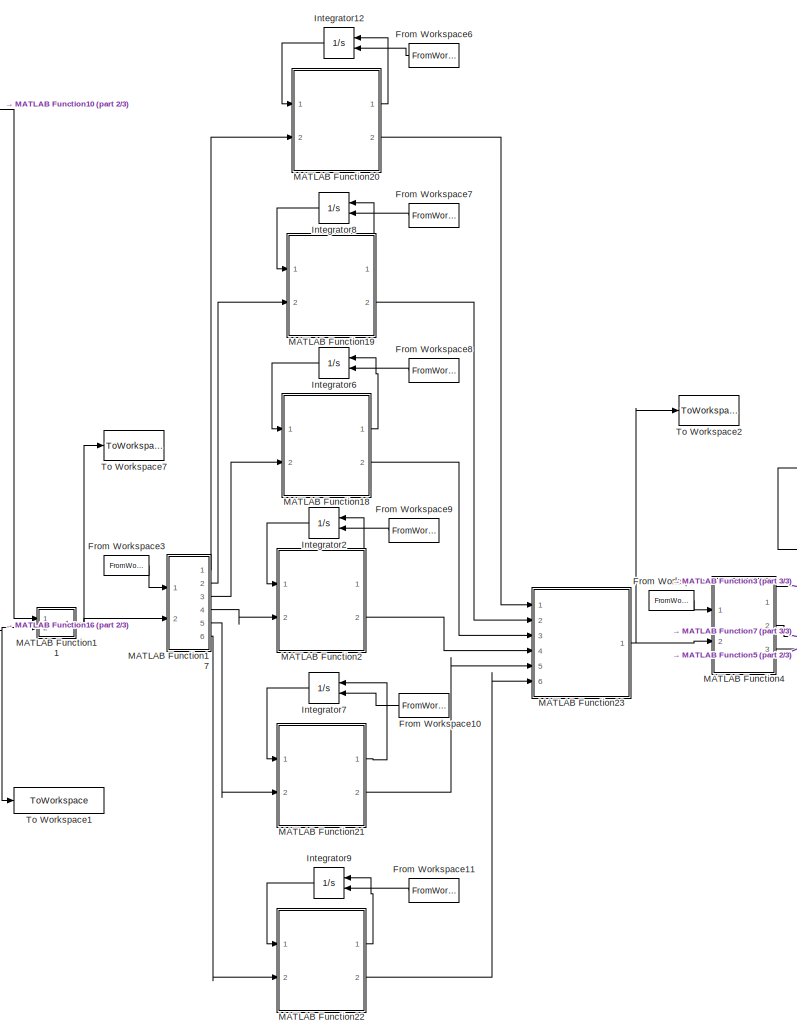
[diagram: root canvas - part 1/3, center side, full height]
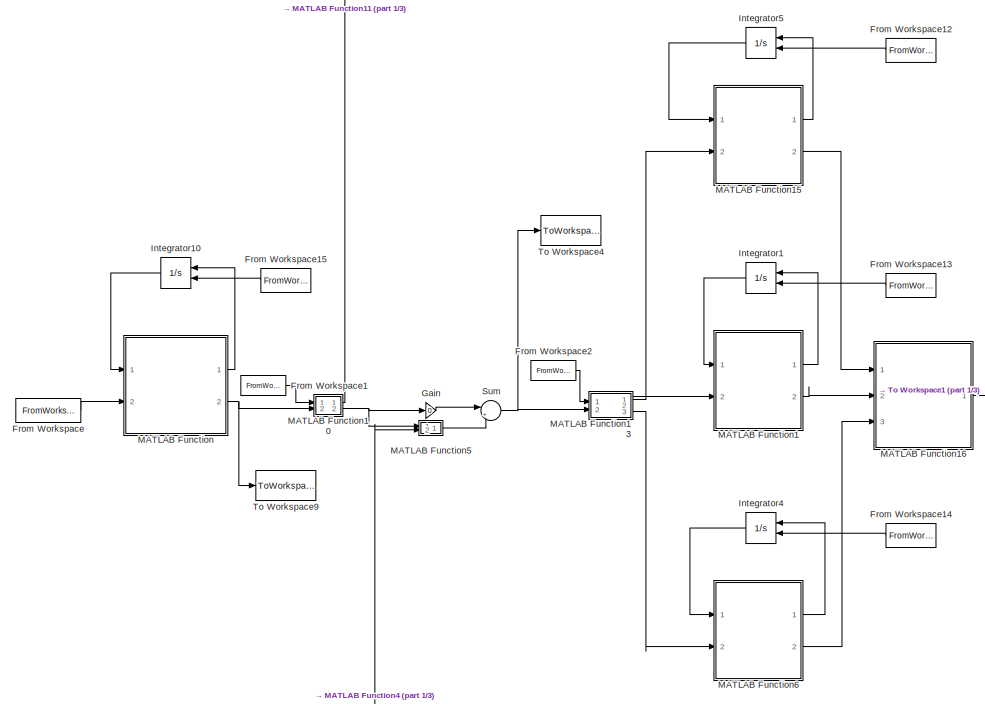
[diagram: root canvas - part 2/3, middle left region]
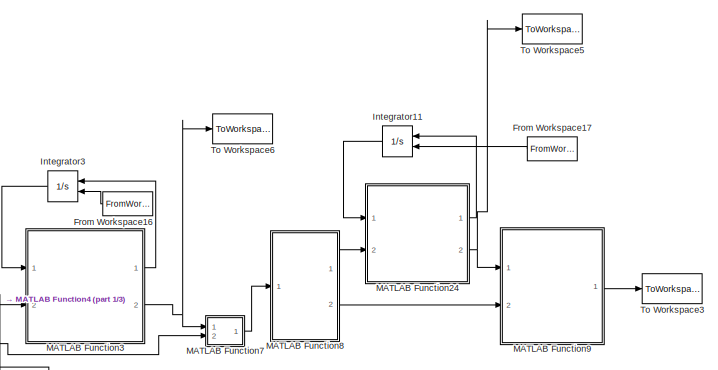
[diagram: root canvas - part 3/3, middle right region]
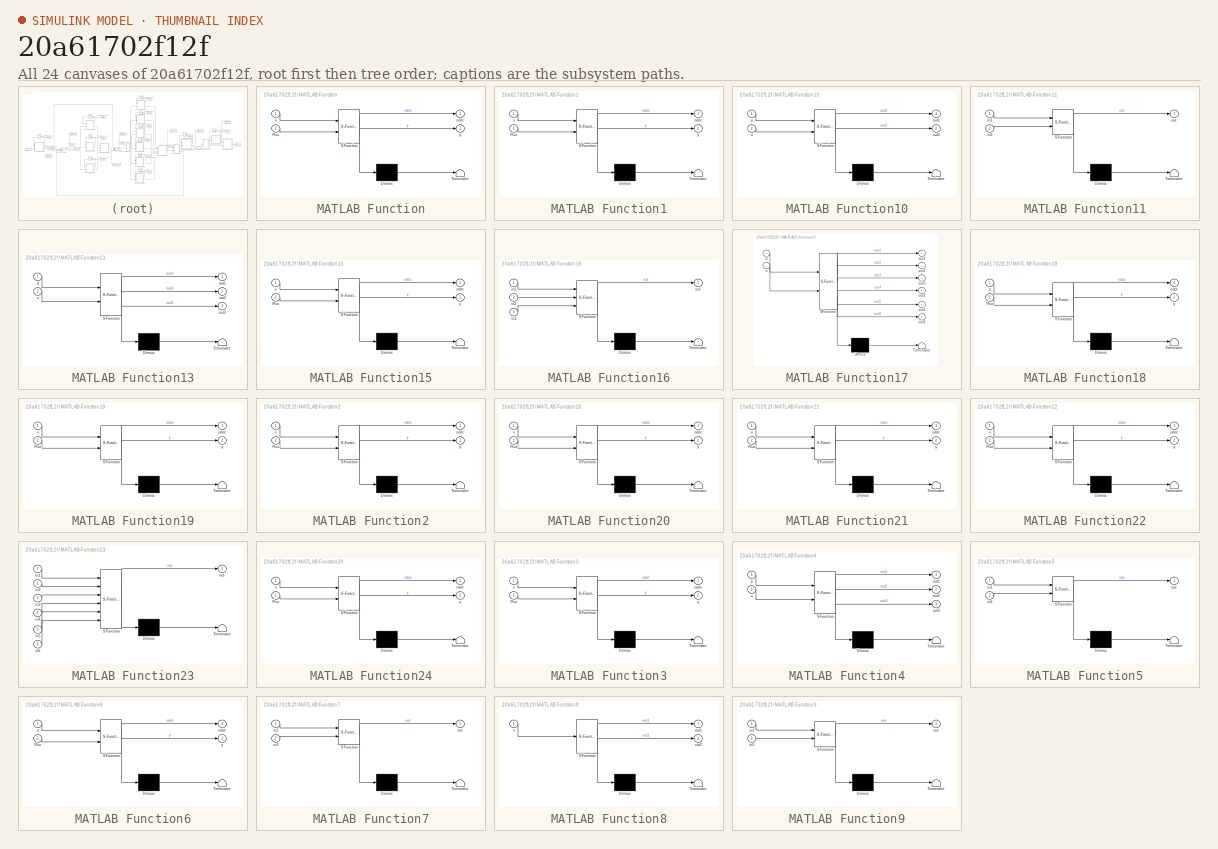
[diagram: thumbnail index - all 24 canvases of the model, root first then tree order]
MODEL slx_20a61702f12f
KIND model
CONFIG AbsTol = auto
CONFIG EnableMultiTasking = off
CONFIG FixedStep = auto
CONFIG MaxStep = auto
CONFIG MinStep = auto
CONFIG RelTol = 1e-2
CONFIG SampleTimeConstraint = Unconstrained
CONFIG Solver = VariableStepAuto
CONFIG SolverName = VariableStepAuto
CONFIG StartTime = 0
CONFIG StopTime = 30
BLOCK [FromWorkspace] From Workspace
  OutDataTypeStr = double
  SampleTime = 0
  VariableName = Flux_in
  ZeroCross = on
BLOCK [FromWorkspace] From Workspace1
  OutDataTypeStr = double
  SampleTime = 0
  VariableName = bypass_pre
  ZeroCross = on
BLOCK [FromWorkspace] From Workspace10
  OutDataTypeStr = double
  SampleTime = 0
  VariableName = initial_nitri
  ZeroCross = on
BLOCK [FromWorkspace] From Workspace11
  OutDataTypeStr = double
  SampleTime = 0
  VariableName = initial_nitri
  ZeroCross = on
BLOCK [FromWorkspace] From Workspace12
  OutDataTypeStr = double
  SampleTime = 0
  VariableName = initial_pre
  ZeroCross = on
BLOCK [FromWorkspace] From Workspace13
  OutDataTypeStr = double
  SampleTime = 0
  VariableName = initial_pre
  ZeroCross = on
BLOCK [FromWorkspace] From Workspace14
  OutDataTypeStr = double
  SampleTime = 0
  VariableName = initial_pre
  ZeroCross = on
BLOCK [FromWorkspace] From Workspace15
  OutDataTypeStr = double
  SampleTime = 0
  VariableName = initial_set_1
  ZeroCross = on
BLOCK [FromWorkspace] From Workspace16
  OutDataTypeStr = double
  SampleTime = 0
  VariableName = initial_post
  ZeroCross = on
BLOCK [FromWorkspace] From Workspace17
  OutDataTypeStr = double
  SampleTime = 0
  VariableName = initial_set_2
  ZeroCross = on
BLOCK [FromWorkspace] From Workspace2
  OutDataTypeStr = double
  SampleTime = 0
  VariableName = repartition_pre
  ZeroCross = on
BLOCK [FromWorkspace] From Workspace3
  OutDataTypeStr = double
  SampleTime = 0
  VariableName = repartition_nitri
  ZeroCross = on
BLOCK [FromWorkspace] From Workspace4
  OutDataTypeStr = double
  SampleTime = 0
  VariableName = recirculation
  ZeroCross = on
BLOCK [FromWorkspace] From Workspace6
  OutDataTypeStr = double
  SampleTime = 0
  VariableName = initial_nitri
  ZeroCross = on
BLOCK [FromWorkspace] From Workspace7
  OutDataTypeStr = double
  SampleTime = 0
  VariableName = initial_nitri
  ZeroCross = on
BLOCK [FromWorkspace] From Workspace8
  OutDataTypeStr = double
  SampleTime = 0
  VariableName = initial_nitri
  ZeroCross = on
BLOCK [FromWorkspace] From Workspace9
  OutDataTypeStr = double
  SampleTime = 0
  VariableName = initial_nitri
  ZeroCross = on
BLOCK [Gain] Gain
  Gain = 0
  OutDataTypeStr = Inherit: Inherit via internal rule
  ParamDataTypeStr = Inherit: Inherit via internal rule
  SaturateOnIntegerOverflow = off
BLOCK [Integrator] Integrator1
  InitialCondition = [122.4 8 25.5 0.018 0.01 43.08 7]
  InitialConditionSource = external
  Ports = [2, 1]
BLOCK [Integrator] Integrator10
  InitialCondition = [122.4 8 25.5 0.018 0.01 43.08 7]
  InitialConditionSource = external
  Ports = [2, 1]
BLOCK [Integrator] Integrator11
  InitialCondition = [122.4 8 25.5 0.018 0.01 43.08 7]
  InitialConditionSource = external
  Ports = [2, 1]
BLOCK [Integrator] Integrator12
  InitialCondition = [122.4 8 25.5 0.018 0.01 43.08 7]
  InitialConditionSource = external
  Ports = [2, 1]
BLOCK [Integrator] Integrator2
  InitialCondition = [122.4 8 25.5 0.018 0.01 43.08 7]
  InitialConditionSource = external
  Ports = [2, 1]
BLOCK [Integrator] Integrator3
  InitialCondition = [122.4 8 25.5 0.018 0.01 43.08 7]
  InitialConditionSource = external
  Ports = [2, 1]
BLOCK [Integrator] Integrator4
  InitialCondition = [122.4 8 25.5 0.018 0.01 43.08 7]
  InitialConditionSource = external
  Ports = [2, 1]
BLOCK [Integrator] Integrator5
  InitialCondition = [122.4 8 25.5 0.018 0.01 43.08 7]
  InitialConditionSource = external
  Ports = [2, 1]
BLOCK [Integrator] Integrator6
  InitialCondition = [122.4 8 25.5 0.018 0.01 43.08 7]
  InitialConditionSource = external
  Ports = [2, 1]
BLOCK [Integrator] Integrator7
  InitialCondition = [122.4 8 25.5 0.018 0.01 43.08 7]
  InitialConditionSource = external
  Ports = [2, 1]
BLOCK [Integrator] Integrator8
  InitialCondition = [122.4 8 25.5 0.018 0.01 43.08 7]
  InitialConditionSource = external
  Ports = [2, 1]
BLOCK [Integrator] Integrator9
  InitialCondition = [122.4 8 25.5 0.018 0.01 43.08 7]
  InitialConditionSource = external
  Ports = [2, 1]
BLOCK [SubSystem] MATLAB Function
  ErrorFcn = Stateflow.Translate.translate
  PermitHierarchicalResolution = ExplicitOnly
  Ports = [2, 2]
  RequestExecContextInheritance = off
  SFBlockType = MATLAB Function
  TreatAsAtomicUnit = on
BLOCK [Demux] MATLAB Function/ Demux 
  Outputs = 1
  Ports = [1, 1]
BLOCK [S-Function] MATLAB Function/ SFunction 
  EnableBusSupport = on
  FunctionName = sf_sfun
  PortCounts = [2 3]
  Ports = [2, 3]
  SFcnIsStateOwnerBlock = off
  SFunctionDeploymentMode = off
  Tag = Stateflow S-Function sav2022_opti 2
BLOCK [Terminator] MATLAB Function/ Terminator 
BLOCK [Inport] MATLAB Function/Flux
  IconDisplay = Port number
  Port = 2
BLOCK [Inport] MATLAB Function/n
  IconDisplay = Port number
BLOCK [Outport] MATLAB Function/ndot
  IconDisplay = Port number
BLOCK [Outport] MATLAB Function/y
  IconDisplay = Port number
  Port = 2
BLOCK [SubSystem] MATLAB Function1
  ErrorFcn = Stateflow.Translate.translate
  PermitHierarchicalResolution = ExplicitOnly
  Ports = [2, 2]
  RequestExecContextInheritance = off
  SFBlockType = MATLAB Function
  TreatAsAtomicUnit = on
BLOCK [Demux] MATLAB Function1/ Demux 
  Outputs = 1
  Ports = [1, 1]
BLOCK [S-Function] MATLAB Function1/ SFunction 
  EnableBusSupport = on
  FunctionName = sf_sfun
  PortCounts = [2 3]
  Ports = [2, 3]
  SFcnIsStateOwnerBlock = off
  SFunctionDeploymentMode = off
  Tag = Stateflow S-Function sav2022_opti 1
BLOCK [Terminator] MATLAB Function1/ Terminator 
BLOCK [Inport] MATLAB Function1/Flux
  IconDisplay = Port number
  Port = 2
BLOCK [Inport] MATLAB Function1/n
  IconDisplay = Port number
BLOCK [Outport] MATLAB Function1/ndot
  IconDisplay = Port number
BLOCK [Outport] MATLAB Function1/y
  IconDisplay = Port number
  Port = 2
BLOCK [SubSystem] MATLAB Function10
  ErrorFcn = Stateflow.Translate.translate
  PermitHierarchicalResolution = ExplicitOnly
  Ports = [2, 2]
  RequestExecContextInheritance = off
  SFBlockType = MATLAB Function
  TreatAsAtomicUnit = on
BLOCK [Demux] MATLAB Function10/ Demux 
  Outputs = 1
  Ports = [1, 1]
BLOCK [S-Function] MATLAB Function10/ SFunction 
  EnableBusSupport = on
  FunctionName = sf_sfun
  PortCounts = [2 3]
  Ports = [2, 3]
  SFcnIsStateOwnerBlock = off
  SFunctionDeploymentMode = off
  Tag = Stateflow S-Function sav2022_opti 11
BLOCK [Terminator] MATLAB Function10/ Terminator 
BLOCK [Outport] MATLAB Function10/out1
  IconDisplay = Port number
BLOCK [Outport] MATLAB Function10/out2
  IconDisplay = Port number
  Port = 2
BLOCK [Inport] MATLAB Function10/p
  IconDisplay = Port number
BLOCK [Inport] MATLAB Function10/u
  IconDisplay = Port number
  Port = 2
BLOCK [SubSystem] MATLAB Function11
  ErrorFcn = Stateflow.Translate.translate
  PermitHierarchicalResolution = ExplicitOnly
  Ports = [2, 1]
  RequestExecContextInheritance = off
  SFBlockType = MATLAB Function
  TreatAsAtomicUnit = on
BLOCK [Demux] MATLAB Function11/ Demux 
  Outputs = 1
  Ports = [1, 1]
BLOCK [S-Function] MATLAB Function11/ SFunction 
  EnableBusSupport = on
  FunctionName = sf_sfun
  PortCounts = [2 2]
  Ports = [2, 2]
  SFcnIsStateOwnerBlock = off
  SFunctionDeploymentMode = off
  Tag = Stateflow S-Function sav2022_opti 12
BLOCK [Terminator] MATLAB Function11/ Terminator 
BLOCK [Inport] MATLAB Function11/in1
  IconDisplay = Port number
BLOCK [Inport] MATLAB Function11/in2
  IconDisplay = Port number
  Port = 2
BLOCK [Outport] MATLAB Function11/out
  IconDisplay = Port number
BLOCK [SubSystem] MATLAB Function13
  ErrorFcn = Stateflow.Translate.translate
  PermitHierarchicalResolution = ExplicitOnly
  Ports = [2, 3]
  RequestExecContextInheritance = off
  SFBlockType = MATLAB Function
  TreatAsAtomicUnit = on
BLOCK [Demux] MATLAB Function13/ Demux 
  Outputs = 1
  Ports = [1, 1]
BLOCK [S-Function] MATLAB Function13/ SFunction 
  EnableBusSupport = on
  FunctionName = sf_sfun
  PortCounts = [2 4]
  Ports = [2, 4]
  SFcnIsStateOwnerBlock = off
  SFunctionDeploymentMode = off
  Tag = Stateflow S-Function sav2022_opti 14
BLOCK [Terminator] MATLAB Function13/ Terminator 
BLOCK [Inport] MATLAB Function13/d
  IconDisplay = Port number
BLOCK [Outport] MATLAB Function13/out1
  IconDisplay = Port number
BLOCK [Outport] MATLAB Function13/out2
  IconDisplay = Port number
  Port = 2
BLOCK [Outport] MATLAB Function13/out3
  IconDisplay = Port number
  Port = 3
BLOCK [Inport] MATLAB Function13/u
  IconDisplay = Port number
  Port = 2
BLOCK [SubSystem] MATLAB Function15
  ErrorFcn = Stateflow.Translate.translate
  PermitHierarchicalResolution = ExplicitOnly
  Ports = [2, 2]
  RequestExecContextInheritance = off
  SFBlockType = MATLAB Function
  TreatAsAtomicUnit = on
BLOCK [Demux] MATLAB Function15/ Demux 
  Outputs = 1
  Ports = [1, 1]
BLOCK [S-Function] MATLAB Function15/ SFunction 
  EnableBusSupport = on
  FunctionName = sf_sfun
  PortCounts = [2 3]
  Ports = [2, 3]
  SFcnIsStateOwnerBlock = off
  SFunctionDeploymentMode = off
  Tag = Stateflow S-Function sav2022_opti 16
BLOCK [Terminator] MATLAB Function15/ Terminator 
BLOCK [Inport] MATLAB Function15/Flux
  IconDisplay = Port number
  Port = 2
BLOCK [Inport] MATLAB Function15/n
  IconDisplay = Port number
BLOCK [Outport] MATLAB Function15/ndot
  IconDisplay = Port number
BLOCK [Outport] MATLAB Function15/y
  IconDisplay = Port number
  Port = 2
BLOCK [SubSystem] MATLAB Function16
  ErrorFcn = Stateflow.Translate.translate
  PermitHierarchicalResolution = ExplicitOnly
  Ports = [3, 1]
  RequestExecContextInheritance = off
  SFBlockType = MATLAB Function
  TreatAsAtomicUnit = on
BLOCK [Demux] MATLAB Function16/ Demux 
  Outputs = 1
  Ports = [1, 1]
BLOCK [S-Function] MATLAB Function16/ SFunction 
  EnableBusSupport = on
  FunctionName = sf_sfun
  PortCounts = [3 2]
  Ports = [3, 2]
  SFcnIsStateOwnerBlock = off
  SFunctionDeploymentMode = off
  Tag = Stateflow S-Function sav2022_opti 17
BLOCK [Terminator] MATLAB Function16/ Terminator 
BLOCK [Inport] MATLAB Function16/in1
  IconDisplay = Port number
BLOCK [Inport] MATLAB Function16/in2
  IconDisplay = Port number
  Port = 2
BLOCK [Inport] MATLAB Function16/in3
  IconDisplay = Port number
  Port = 3
BLOCK [Outport] MATLAB Function16/out
  IconDisplay = Port number
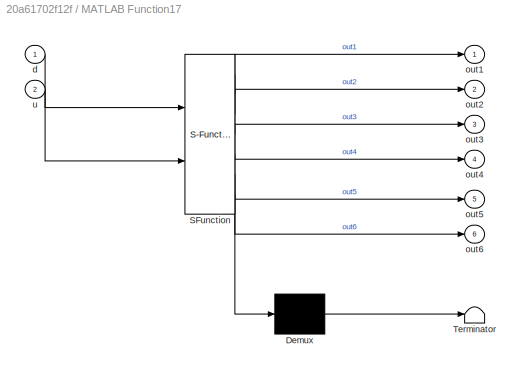
BLOCK [SubSystem] MATLAB Function17
  ErrorFcn = Stateflow.Translate.translate
  PermitHierarchicalResolution = ExplicitOnly
  Ports = [2, 6]
  RequestExecContextInheritance = off
  SFBlockType = MATLAB Function
  TreatAsAtomicUnit = on
BLOCK [Demux] MATLAB Function17/ Demux 
  Outputs = 1
  Ports = [1, 1]
BLOCK [S-Function] MATLAB Function17/ SFunction 
  EnableBusSupport = on
  FunctionName = sf_sfun
  PortCounts = [2 7]
  Ports = [2, 7]
  SFcnIsStateOwnerBlock = off
  SFunctionDeploymentMode = off
  Tag = Stateflow S-Function sav2022_opti 18
BLOCK [Terminator] MATLAB Function17/ Terminator 
BLOCK [Inport] MATLAB Function17/d
  IconDisplay = Port number
BLOCK [Outport] MATLAB Function17/out1
  IconDisplay = Port number
BLOCK [Outport] MATLAB Function17/out2
  IconDisplay = Port number
  Port = 2
BLOCK [Outport] MATLAB Function17/out3
  IconDisplay = Port number
  Port = 3
BLOCK [Outport] MATLAB Function17/out4
  IconDisplay = Port number
  Port = 4
BLOCK [Outport] MATLAB Function17/out5
  IconDisplay = Port number
  Port = 5
BLOCK [Outport] MATLAB Function17/out6
  IconDisplay = Port number
  Port = 6
BLOCK [Inport] MATLAB Function17/u
  IconDisplay = Port number
  Port = 2
BLOCK [SubSystem] MATLAB Function18
  ErrorFcn = Stateflow.Translate.translate
  PermitHierarchicalResolution = ExplicitOnly
  Ports = [2, 2]
  RequestExecContextInheritance = off
  SFBlockType = MATLAB Function
  TreatAsAtomicUnit = on
BLOCK [Demux] MATLAB Function18/ Demux 
  Outputs = 1
  Ports = [1, 1]
BLOCK [S-Function] MATLAB Function18/ SFunction 
  EnableBusSupport = on
  FunctionName = sf_sfun
  PortCounts = [2 3]
  Ports = [2, 3]
  SFcnIsStateOwnerBlock = off
  SFunctionDeploymentMode = off
  Tag = Stateflow S-Function sav2022_opti 19
BLOCK [Terminator] MATLAB Function18/ Terminator 
BLOCK [Inport] MATLAB Function18/Flux
  IconDisplay = Port number
  Port = 2
BLOCK [Inport] MATLAB Function18/n
  IconDisplay = Port number
BLOCK [Outport] MATLAB Function18/ndot
  IconDisplay = Port number
BLOCK [Outport] MATLAB Function18/y
  IconDisplay = Port number
  Port = 2
BLOCK [SubSystem] MATLAB Function19
  ErrorFcn = Stateflow.Translate.translate
  PermitHierarchicalResolution = ExplicitOnly
  Ports = [2, 2]
  RequestExecContextInheritance = off
  SFBlockType = MATLAB Function
  TreatAsAtomicUnit = on
BLOCK [Demux] MATLAB Function19/ Demux 
  Outputs = 1
  Ports = [1, 1]
BLOCK [S-Function] MATLAB Function19/ SFunction 
  EnableBusSupport = on
  FunctionName = sf_sfun
  PortCounts = [2 3]
  Ports = [2, 3]
  SFcnIsStateOwnerBlock = off
  SFunctionDeploymentMode = off
  Tag = Stateflow S-Function sav2022_opti 20
BLOCK [Terminator] MATLAB Function19/ Terminator 
BLOCK [Inport] MATLAB Function19/Flux
  IconDisplay = Port number
  Port = 2
BLOCK [Inport] MATLAB Function19/n
  IconDisplay = Port number
BLOCK [Outport] MATLAB Function19/ndot
  IconDisplay = Port number
BLOCK [Outport] MATLAB Function19/y
  IconDisplay = Port number
  Port = 2
BLOCK [SubSystem] MATLAB Function2
  ErrorFcn = Stateflow.Translate.translate
  PermitHierarchicalResolution = ExplicitOnly
  Ports = [2, 2]
  RequestExecContextInheritance = off
  SFBlockType = MATLAB Function
  TreatAsAtomicUnit = on
BLOCK [Demux] MATLAB Function2/ Demux 
  Outputs = 1
  Ports = [1, 1]
BLOCK [S-Function] MATLAB Function2/ SFunction 
  EnableBusSupport = on
  FunctionName = sf_sfun
  PortCounts = [2 3]
  Ports = [2, 3]
  SFcnIsStateOwnerBlock = off
  SFunctionDeploymentMode = off
  Tag = Stateflow S-Function sav2022_opti 3
BLOCK [Terminator] MATLAB Function2/ Terminator 
BLOCK [Inport] MATLAB Function2/Flux
  IconDisplay = Port number
  Port = 2
BLOCK [Inport] MATLAB Function2/n
  IconDisplay = Port number
BLOCK [Outport] MATLAB Function2/ndot
  IconDisplay = Port number
BLOCK [Outport] MATLAB Function2/y
  IconDisplay = Port number
  Port = 2
BLOCK [SubSystem] MATLAB Function20
  ErrorFcn = Stateflow.Translate.translate
  PermitHierarchicalResolution = ExplicitOnly
  Ports = [2, 2]
  RequestExecContextInheritance = off
  SFBlockType = MATLAB Function
  TreatAsAtomicUnit = on
BLOCK [Demux] MATLAB Function20/ Demux 
  Outputs = 1
  Ports = [1, 1]
BLOCK [S-Function] MATLAB Function20/ SFunction 
  EnableBusSupport = on
  FunctionName = sf_sfun
  PortCounts = [2 3]
  Ports = [2, 3]
  SFcnIsStateOwnerBlock = off
  SFunctionDeploymentMode = off
  Tag = Stateflow S-Function sav2022_opti 21
BLOCK [Terminator] MATLAB Function20/ Terminator 
BLOCK [Inport] MATLAB Function20/Flux
  IconDisplay = Port number
  Port = 2
BLOCK [Inport] MATLAB Function20/n
  IconDisplay = Port number
BLOCK [Outport] MATLAB Function20/ndot
  IconDisplay = Port number
BLOCK [Outport] MATLAB Function20/y
  IconDisplay = Port number
  Port = 2
BLOCK [SubSystem] MATLAB Function21
  ErrorFcn = Stateflow.Translate.translate
  PermitHierarchicalResolution = ExplicitOnly
  Ports = [2, 2]
  RequestExecContextInheritance = off
  SFBlockType = MATLAB Function
  TreatAsAtomicUnit = on
BLOCK [Demux] MATLAB Function21/ Demux 
  Outputs = 1
  Ports = [1, 1]
BLOCK [S-Function] MATLAB Function21/ SFunction 
  EnableBusSupport = on
  FunctionName = sf_sfun
  PortCounts = [2 3]
  Ports = [2, 3]
  SFcnIsStateOwnerBlock = off
  SFunctionDeploymentMode = off
  Tag = Stateflow S-Function sav2022_opti 22
BLOCK [Terminator] MATLAB Function21/ Terminator 
BLOCK [Inport] MATLAB Function21/Flux
  IconDisplay = Port number
  Port = 2
BLOCK [Inport] MATLAB Function21/n
  IconDisplay = Port number
BLOCK [Outport] MATLAB Function21/ndot
  IconDisplay = Port number
BLOCK [Outport] MATLAB Function21/y
  IconDisplay = Port number
  Port = 2
BLOCK [SubSystem] MATLAB Function22
  ErrorFcn = Stateflow.Translate.translate
  PermitHierarchicalResolution = ExplicitOnly
  Ports = [2, 2]
  RequestExecContextInheritance = off
  SFBlockType = MATLAB Function
  TreatAsAtomicUnit = on
BLOCK [Demux] MATLAB Function22/ Demux 
  Outputs = 1
  Ports = [1, 1]
BLOCK [S-Function] MATLAB Function22/ SFunction 
  EnableBusSupport = on
  FunctionName = sf_sfun
  PortCounts = [2 3]
  Ports = [2, 3]
  SFcnIsStateOwnerBlock = off
  SFunctionDeploymentMode = off
  Tag = Stateflow S-Function sav2022_opti 23
BLOCK [Terminator] MATLAB Function22/ Terminator 
BLOCK [Inport] MATLAB Function22/Flux
  IconDisplay = Port number
  Port = 2
BLOCK [Inport] MATLAB Function22/n
  IconDisplay = Port number
BLOCK [Outport] MATLAB Function22/ndot
  IconDisplay = Port number
BLOCK [Outport] MATLAB Function22/y
  IconDisplay = Port number
  Port = 2
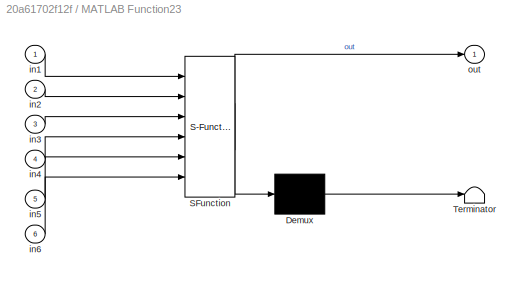
BLOCK [SubSystem] MATLAB Function23
  ErrorFcn = Stateflow.Translate.translate
  PermitHierarchicalResolution = ExplicitOnly
  Ports = [6, 1]
  RequestExecContextInheritance = off
  SFBlockType = MATLAB Function
  TreatAsAtomicUnit = on
BLOCK [Demux] MATLAB Function23/ Demux 
  Outputs = 1
  Ports = [1, 1]
BLOCK [S-Function] MATLAB Function23/ SFunction 
  EnableBusSupport = on
  FunctionName = sf_sfun
  PortCounts = [6 2]
  Ports = [6, 2]
  SFcnIsStateOwnerBlock = off
  SFunctionDeploymentMode = off
  Tag = Stateflow S-Function sav2022_opti 24
BLOCK [Terminator] MATLAB Function23/ Terminator 
BLOCK [Inport] MATLAB Function23/in1
  IconDisplay = Port number
BLOCK [Inport] MATLAB Function23/in2
  IconDisplay = Port number
  Port = 2
BLOCK [Inport] MATLAB Function23/in3
  IconDisplay = Port number
  Port = 3
BLOCK [Inport] MATLAB Function23/in4
  IconDisplay = Port number
  Port = 4
BLOCK [Inport] MATLAB Function23/in5
  IconDisplay = Port number
  Port = 5
BLOCK [Inport] MATLAB Function23/in6
  IconDisplay = Port number
  Port = 6
BLOCK [Outport] MATLAB Function23/out
  IconDisplay = Port number
BLOCK [SubSystem] MATLAB Function24
  ErrorFcn = Stateflow.Translate.translate
  PermitHierarchicalResolution = ExplicitOnly
  Ports = [2, 2]
  RequestExecContextInheritance = off
  SFBlockType = MATLAB Function
  TreatAsAtomicUnit = on
BLOCK [Demux] MATLAB Function24/ Demux 
  Outputs = 1
  Ports = [1, 1]
BLOCK [S-Function] MATLAB Function24/ SFunction 
  EnableBusSupport = on
  FunctionName = sf_sfun
  PortCounts = [2 3]
  Ports = [2, 3]
  SFcnIsStateOwnerBlock = off
  SFunctionDeploymentMode = off
  Tag = Stateflow S-Function sav2022_opti 25
BLOCK [Terminator] MATLAB Function24/ Terminator 
BLOCK [Inport] MATLAB Function24/Flux
  IconDisplay = Port number
  Port = 2
BLOCK [Inport] MATLAB Function24/n
  IconDisplay = Port number
BLOCK [Outport] MATLAB Function24/ndot
  IconDisplay = Port number
BLOCK [Outport] MATLAB Function24/y
  IconDisplay = Port number
  Port = 2
BLOCK [SubSystem] MATLAB Function3
  ErrorFcn = Stateflow.Translate.translate
  PermitHierarchicalResolution = ExplicitOnly
  Ports = [2, 2]
  RequestExecContextInheritance = off
  SFBlockType = MATLAB Function
  TreatAsAtomicUnit = on
BLOCK [Demux] MATLAB Function3/ Demux 
  Outputs = 1
  Ports = [1, 1]
BLOCK [S-Function] MATLAB Function3/ SFunction 
  EnableBusSupport = on
  FunctionName = sf_sfun
  PortCounts = [2 3]
  Ports = [2, 3]
  SFcnIsStateOwnerBlock = off
  SFunctionDeploymentMode = off
  Tag = Stateflow S-Function sav2022_opti 4
BLOCK [Terminator] MATLAB Function3/ Terminator 
BLOCK [Inport] MATLAB Function3/Flux
  IconDisplay = Port number
  Port = 2
BLOCK [Inport] MATLAB Function3/n
  IconDisplay = Port number
BLOCK [Outport] MATLAB Function3/ndot
  IconDisplay = Port number
BLOCK [Outport] MATLAB Function3/y
  IconDisplay = Port number
  Port = 2
BLOCK [SubSystem] MATLAB Function4
  ErrorFcn = Stateflow.Translate.translate
  PermitHierarchicalResolution = ExplicitOnly
  Ports = [2, 3]
  RequestExecContextInheritance = off
  SFBlockType = MATLAB Function
  TreatAsAtomicUnit = on
BLOCK [Demux] MATLAB Function4/ Demux 
  Outputs = 1
  Ports = [1, 1]
BLOCK [S-Function] MATLAB Function4/ SFunction 
  EnableBusSupport = on
  FunctionName = sf_sfun
  PortCounts = [2 4]
  Ports = [2, 4]
  SFcnIsStateOwnerBlock = off
  SFunctionDeploymentMode = off
  Tag = Stateflow S-Function sav2022_opti 5
BLOCK [Terminator] MATLAB Function4/ Terminator 
BLOCK [Outport] MATLAB Function4/out1
  IconDisplay = Port number
BLOCK [Outport] MATLAB Function4/out2
  IconDisplay = Port number
  Port = 2
BLOCK [Outport] MATLAB Function4/out3
  IconDisplay = Port number
  Port = 3
BLOCK [Inport] MATLAB Function4/p
  IconDisplay = Port number
BLOCK [Inport] MATLAB Function4/u
  IconDisplay = Port number
  Port = 2
BLOCK [SubSystem] MATLAB Function5
  ErrorFcn = Stateflow.Translate.translate
  PermitHierarchicalResolution = ExplicitOnly
  Ports = [2, 1]
  RequestExecContextInheritance = off
  SFBlockType = MATLAB Function
  TreatAsAtomicUnit = on
BLOCK [Demux] MATLAB Function5/ Demux 
  Outputs = 1
  Ports = [1, 1]
BLOCK [S-Function] MATLAB Function5/ SFunction 
  EnableBusSupport = on
  FunctionName = sf_sfun
  PortCounts = [2 2]
  Ports = [2, 2]
  SFcnIsStateOwnerBlock = off
  SFunctionDeploymentMode = off
  Tag = Stateflow S-Function sav2022_opti 6
BLOCK [Terminator] MATLAB Function5/ Terminator 
BLOCK [Inport] MATLAB Function5/in1
  IconDisplay = Port number
BLOCK [Inport] MATLAB Function5/in2
  IconDisplay = Port number
  Port = 2
BLOCK [Outport] MATLAB Function5/out
  IconDisplay = Port number
BLOCK [SubSystem] MATLAB Function6
  ErrorFcn = Stateflow.Translate.translate
  PermitHierarchicalResolution = ExplicitOnly
  Ports = [2, 2]
  RequestExecContextInheritance = off
  SFBlockType = MATLAB Function
  TreatAsAtomicUnit = on
BLOCK [Demux] MATLAB Function6/ Demux 
  Outputs = 1
  Ports = [1, 1]
BLOCK [S-Function] MATLAB Function6/ SFunction 
  EnableBusSupport = on
  FunctionName = sf_sfun
  PortCounts = [2 3]
  Ports = [2, 3]
  SFcnIsStateOwnerBlock = off
  SFunctionDeploymentMode = off
  Tag = Stateflow S-Function sav2022_opti 7
BLOCK [Terminator] MATLAB Function6/ Terminator 
BLOCK [Inport] MATLAB Function6/Flux
  IconDisplay = Port number
  Port = 2
BLOCK [Inport] MATLAB Function6/n
  IconDisplay = Port number
BLOCK [Outport] MATLAB Function6/ndot
  IconDisplay = Port number
BLOCK [Outport] MATLAB Function6/y
  IconDisplay = Port number
  Port = 2
BLOCK [SubSystem] MATLAB Function7
  ErrorFcn = Stateflow.Translate.translate
  PermitHierarchicalResolution = ExplicitOnly
  Ports = [2, 1]
  RequestExecContextInheritance = off
  SFBlockType = MATLAB Function
  TreatAsAtomicUnit = on
BLOCK [Demux] MATLAB Function7/ Demux 
  Outputs = 1
  Ports = [1, 1]
BLOCK [S-Function] MATLAB Function7/ SFunction 
  EnableBusSupport = on
  FunctionName = sf_sfun
  PortCounts = [2 2]
  Ports = [2, 2]
  SFcnIsStateOwnerBlock = off
  SFunctionDeploymentMode = off
  Tag = Stateflow S-Function sav2022_opti 8
BLOCK [Terminator] MATLAB Function7/ Terminator 
BLOCK [Inport] MATLAB Function7/in1
  IconDisplay = Port number
BLOCK [Inport] MATLAB Function7/in2
  IconDisplay = Port number
  Port = 2
BLOCK [Outport] MATLAB Function7/out
  IconDisplay = Port number
BLOCK [SubSystem] MATLAB Function8
  ErrorFcn = Stateflow.Translate.translate
  PermitHierarchicalResolution = ExplicitOnly
  Ports = [1, 2]
  RequestExecContextInheritance = off
  SFBlockType = MATLAB Function
  TreatAsAtomicUnit = on
BLOCK [Demux] MATLAB Function8/ Demux 
  Outputs = 1
  Ports = [1, 1]
BLOCK [S-Function] MATLAB Function8/ SFunction 
  EnableBusSupport = on
  FunctionName = sf_sfun
  PortCounts = [1 3]
  Ports = [1, 3]
  SFcnIsStateOwnerBlock = off
  SFunctionDeploymentMode = off
  Tag = Stateflow S-Function sav2022_opti 9
BLOCK [Terminator] MATLAB Function8/ Terminator 
BLOCK [Outport] MATLAB Function8/out1
  IconDisplay = Port number
BLOCK [Outport] MATLAB Function8/out2
  IconDisplay = Port number
  Port = 2
BLOCK [Inport] MATLAB Function8/u
  IconDisplay = Port number
BLOCK [SubSystem] MATLAB Function9
  ErrorFcn = Stateflow.Translate.translate
  PermitHierarchicalResolution = ExplicitOnly
  Ports = [2, 1]
  RequestExecContextInheritance = off
  SFBlockType = MATLAB Function
  TreatAsAtomicUnit = on
BLOCK [Demux] MATLAB Function9/ Demux 
  Outputs = 1
  Ports = [1, 1]
BLOCK [S-Function] MATLAB Function9/ SFunction 
  EnableBusSupport = on
  FunctionName = sf_sfun
  PortCounts = [2 2]
  Ports = [2, 2]
  SFcnIsStateOwnerBlock = off
  SFunctionDeploymentMode = off
  Tag = Stateflow S-Function sav2022_opti 10
BLOCK [Terminator] MATLAB Function9/ Terminator 
BLOCK [Inport] MATLAB Function9/in1
  IconDisplay = Port number
BLOCK [Inport] MATLAB Function9/in2
  IconDisplay = Port number
  Port = 2
BLOCK [Outport] MATLAB Function9/out
  IconDisplay = Port number
BLOCK [Sum] Sum
  IconShape = round
  InputSameDT = off
  Inputs = |++
  OutDataTypeStr = Inherit: Inherit via internal rule
  Ports = [2, 1]
  SaturateOnIntegerOverflow = off
BLOCK [ToWorkspace] To Workspace1
  FixptAsFi = on
  MaxDataPoints = inf
  Ports = [1]
  SampleTime = -1
  Save2DSignal = 3-D array (concatenate along third dimension)
  SaveFormat = Timeseries
  VariableName = output_predenitri
BLOCK [ToWorkspace] To Workspace2
  FixptAsFi = on
  MaxDataPoints = inf
  Ports = [1]
  SampleTime = -1
  Save2DSignal = 3-D array (concatenate along third dimension)
  SaveFormat = Timeseries
  VariableName = output_nitri
BLOCK [ToWorkspace] To Workspace3
  FixptAsFi = on
  MaxDataPoints = inf
  Ports = [1]
  SampleTime = -1
  Save2DSignal = 3-D array (concatenate along third dimension)
  SaveFormat = Timeseries
  VariableName = output_station
BLOCK [ToWorkspace] To Workspace4
  FixptAsFi = on
  MaxDataPoints = inf
  Ports = [1]
  SampleTime = -1
  Save2DSignal = 3-D array (concatenate along third dimension)
  SaveFormat = Timeseries
  VariableName = mixed_input_pre
BLOCK [ToWorkspace] To Workspace5
  FixptAsFi = on
  MaxDataPoints = inf
  Ports = [1]
  SampleTime = -1
  Save2DSignal = 3-D array (concatenate along third dimension)
  SaveFormat = Timeseries
  VariableName = output_settler2
BLOCK [ToWorkspace] To Workspace6
  FixptAsFi = on
  MaxDataPoints = inf
  Ports = [1]
  SampleTime = -1
  Save2DSignal = 3-D array (concatenate along third dimension)
  SaveFormat = Timeseries
  VariableName = output_post
BLOCK [ToWorkspace] To Workspace7
  FixptAsFi = on
  MaxDataPoints = inf
  Ports = [1]
  SampleTime = -1
  Save2DSignal = 3-D array (concatenate along third dimension)
  SaveFormat = Timeseries
  VariableName = mixed_input_nitri
BLOCK [ToWorkspace] To Workspace9
  FixptAsFi = on
  MaxDataPoints = inf
  Ports = [1]
  SampleTime = -1
  Save2DSignal = 3-D array (concatenate along third dimension)
  SaveFormat = Timeseries
  VariableName = output_settler
LINE From Workspace10:1 -> Integrator7:2
LINE From Workspace11:1 -> Integrator9:2
LINE From Workspace12:1 -> Integrator5:2
LINE From Workspace13:1 -> Integrator1:2
LINE From Workspace14:1 -> Integrator4:2
LINE From Workspace15:1 -> Integrator10:2
LINE From Workspace16:1 -> Integrator3:2
LINE From Workspace17:1 -> Integrator11:2
LINE From Workspace1:1 -> MATLAB Function10:1
LINE From Workspace2:1 -> MATLAB Function13:1
LINE From Workspace3:1 -> MATLAB Function17:1
LINE From Workspace4:1 -> MATLAB Function4:1
LINE From Workspace6:1 -> Integrator12:2
LINE From Workspace7:1 -> Integrator8:2
LINE From Workspace8:1 -> Integrator6:2
LINE From Workspace9:1 -> Integrator2:2
LINE From Workspace:1 -> MATLAB Function:2
LINE Gain:1 -> Sum:1
LINE Integrator10:1 -> MATLAB Function:1
LINE Integrator11:1 -> MATLAB Function24:1
LINE Integrator12:1 -> MATLAB Function20:1
LINE Integrator1:1 -> MATLAB Function1:1
LINE Integrator2:1 -> MATLAB Function2:1
LINE Integrator3:1 -> MATLAB Function3:1
LINE Integrator4:1 -> MATLAB Function6:1
LINE Integrator5:1 -> MATLAB Function15:1
LINE Integrator6:1 -> MATLAB Function18:1
LINE Integrator7:1 -> MATLAB Function21:1
LINE Integrator8:1 -> MATLAB Function19:1
LINE Integrator9:1 -> MATLAB Function22:1
LINE MATLAB Function10:1 -> MATLAB Function11:1
NET MATLAB Function10:2 -> Gain:1, MATLAB Function5:1
NET MATLAB Function11:1 -> MATLAB Function17:2, To Workspace7:1
LINE MATLAB Function13:1 -> MATLAB Function15:2
LINE MATLAB Function13:2 -> MATLAB Function1:2
LINE MATLAB Function13:3 -> MATLAB Function6:2
LINE MATLAB Function15:1 -> Integrator5:1
LINE MATLAB Function15:2 -> MATLAB Function16:1
NET MATLAB Function16:1 -> MATLAB Function11:2, To Workspace1:1
LINE MATLAB Function17:1 -> MATLAB Function20:2
LINE MATLAB Function17:2 -> MATLAB Function19:2
LINE MATLAB Function17:3 -> MATLAB Function18:2
LINE MATLAB Function17:4 -> MATLAB Function2:2
LINE MATLAB Function17:5 -> MATLAB Function21:2
LINE MATLAB Function17:6 -> MATLAB Function22:2
LINE MATLAB Function18:1 -> Integrator6:1
LINE MATLAB Function18:2 -> MATLAB Function23:3
LINE MATLAB Function19:1 -> Integrator8:1
LINE MATLAB Function19:2 -> MATLAB Function23:2
LINE MATLAB Function1:1 -> Integrator1:1
LINE MATLAB Function1:2 -> MATLAB Function16:2
LINE MATLAB Function20:1 -> Integrator12:1
LINE MATLAB Function20:2 -> MATLAB Function23:1
LINE MATLAB Function21:1 -> Integrator7:1
LINE MATLAB Function21:2 -> MATLAB Function23:5
LINE MATLAB Function22:1 -> Integrator9:1
LINE MATLAB Function22:2 -> MATLAB Function23:6
NET MATLAB Function23:1 -> MATLAB Function4:2, To Workspace2:1
LINE MATLAB Function24:1 -> Integrator11:1
NET MATLAB Function24:2 -> MATLAB Function9:1, To Workspace5:1
LINE MATLAB Function2:1 -> Integrator2:1
LINE MATLAB Function2:2 -> MATLAB Function23:4
LINE MATLAB Function3:1 -> Integrator3:1
NET MATLAB Function3:2 -> MATLAB Function7:1, To Workspace6:1
LINE MATLAB Function4:1 -> MATLAB Function3:2
LINE MATLAB Function4:2 -> MATLAB Function7:2
LINE MATLAB Function4:3 -> MATLAB Function5:2
LINE MATLAB Function5:1 -> Sum:2
LINE MATLAB Function6:1 -> Integrator4:1
LINE MATLAB Function6:2 -> MATLAB Function16:3
LINE MATLAB Function7:1 -> MATLAB Function8:1
LINE MATLAB Function8:1 -> MATLAB Function24:2
LINE MATLAB Function8:2 -> MATLAB Function9:2
LINE MATLAB Function9:1 -> To Workspace3:1
LINE MATLAB Function:1 -> Integrator10:1
NET MATLAB Function:2 -> MATLAB Function10:2, To Workspace9:1
NET Sum:1 -> MATLAB Function13:2, To Workspace4:1
note: NET lines group one-source signal fan-out (src -> all destinations, sorted); 1:1 wires keep LINE
CHART MATLAB Function1 states=1 transitions=1
  STATE_LABEL 'eML_blk_kernel()'
  STATE_LABEL 'SCRIPT:\nfunction [ndot,y] = pre_denitrification(n,Flux)\nY=[0.675 0.297 2.3];\nmu=[3.95 1.99];\n\nK_NO3_1=0.4;\nK_NO2_1=1.05;\nK_COD_1=71.5;\nK_COD_2=11.6;\nX1=465.6;\nV2=35090/3;\n\n\nC_in=Flux(1:8);\nQ =Flux(8);\n\ndndt=zeros(7,1);\ndndt(1)=Q/V2*(C_in(1)-n(1));\ndndt(2)=Q/V2*(C_in(2)-n(2));\ndndt(3)=-1/Y(1)*mu(1)*n(6)/(K_NO3_1+n(6))*n(3)/(K_COD_1+n(3))*X1-1/Y(2)*mu(2)*n(5)/(K_NO2_1+n(5))*n(3)/(K_COD_2+n(3))*X1+Q/...<+446ch>'  <repeated x3 — deduplicated; at blocks: MATLAB Function1, MATLAB Function6, MATLAB Function15>
CHART MATLAB Function states=1 transitions=1
  STATE_LABEL 'eML_blk_kernel()'
  STATE_LABEL 'SCRIPT:\nfunction [ndot,y] = settler(n,Flux)\n\n k=[256.76 2.6643 2.2693];\n\n K_FeCl3=0.000001;\n K_PO4=0.0346;\n\nV1=32445;\nC_in=Flux(1:7);\nQ =Flux(8);\nu_r=[32.6 0]; %FeCl3 [g/m^3]\ndndt=zeros(7,1);\n % interp1(T, Q_in, t);\ndndt(1)=-k(1)*n(1)*u_r(1)/(K_FeCl3+u_r(1)) + Q/V1*(C_in(1)-n(1)); %TSS removal\ndndt(2)=-k(2)*n(2)*u_r(1)/(K_PO4+n(2)) + Q/V1*(C_in(2)-n(2));\ndndt(3)=-k(3)*n(3)*u_r(1)+Q/V1*(C_in(3)-n(3...<+242ch>'
CHART MATLAB Function2 states=1 transitions=1
  STATE_LABEL 'eML_blk_kernel()'
  STATE_LABEL 'SCRIPT:\nfunction [ndot,y] = Nitrification(n,Flux)\nY=[1.67 0.16];\nmu=[0.072 50.8 1.67 0.88 576.97 0.31];\n\nK_NO2_2=0.01;\nK_NH4=0.01;\nK_O2_1=1.501E-4;\nK_O2_2=4.42E-13;\n\n\nX2=640;\nX3=634;\n\n\n\nV3=50820/6;\n\nC_in=Flux(1:7);\nQ =Flux(8);\n\ndndt=zeros(7,1);\ndndt(1)=Q/V3*(C_in(1)-n(1));\ndndt(2)=Q/V3*(C_in(2)-n(2));\ndndt(3)=Q/V3*(C_in(3)-n(3));\ndndt(4)=-mu(3)*n(4)/(K_NH4+n(4))*X2+Q/V3*(C_in(4)-n(4));\ndndt(5)=1/Y...<+428ch>'  <repeated x3 — deduplicated; at blocks: MATLAB Function2, MATLAB Function18, MATLAB Function21>
CHART MATLAB Function3 states=1 transitions=1
  STATE_LABEL 'eML_blk_kernel()'
  STATE_LABEL 'SCRIPT:\nfunction [ndot,y] = post_denitrification(n,Flux)\nY=[0.077 0.14 40.57 6.87 0.14 3.19*10^5 1.67*10^5 0.25 0.96 27.57];\nmu=[0.072 50.8 1.67 0.88 11.6 9.4];\n\n\nK_NO3_2=0.1;\nK_NO2_3=4.42E-8;\nK_COD_3=70.29;\nK_COD_4=0.001;\n\n\n\nX4=582;\n\nV4=16182;\n\nC_in=Flux(1:7);\nQ =Flux(8);\n\n\ndndt=zeros(7,1);\ndndt(1)=Q/V4*(C_in(1)-n(1));\ndndt(2)=Q/V4*(C_in(2)-n(2));\ndndt(3)=-1/Y(8)*mu(5)*n(6)/(K_NO3_2+n(6))*n(3)/(K...<+481ch>'
CHART MATLAB Function4 states=1 transitions=1
  STATE_LABEL 'eML_blk_kernel()'
  STATE_LABEL 'SCRIPT:\n\nfunction [out1,out2,out3] = fcn(p,u)\nif u(8)-p>11.2*3600*24\nout1=[u(1:7);11.2*3600*24];\nout2=[u(1:7);u(8)-p-11.2*3600*24];\nout3=[u(1:7);p];\nelse\nout1=[u(1:7);u(8)-p];\nout2=[u(1:7);0];\nout3=[u(1:7);p];   \nend\n\nend\n\n'
CHART MATLAB Function5 states=1 transitions=1
  STATE_LABEL 'eML_blk_kernel()'
  STATE_LABEL 'SCRIPT:\n\nfunction out  = SUM(in1,in2)\n\n\n\nC=(in1(1:7).*in1(8)+in2(1:7).*in2(8))./(in1(8)+in2(8));\nQ=in1(8)+in2(8);\nout=[C;Q];\n\nend\n\n'
CHART MATLAB Function6 states=1 transitions=1
  STATE_LABEL 'eML_blk_kernel()'
CHART MATLAB Function7 states=1 transitions=1
  STATE_LABEL 'eML_blk_kernel()'
  STATE_LABEL 'SCRIPT:\n\nfunction out  = SUM(in1,in2)\n\n\n\nC=(in1(1:7).*in1(8)+in2(1:7).*in2(8))./(in1(8)+in2(8));\nQ=in1(8)+in2(8);\nout=[C;Q];\n\nend\n\n'
CHART MATLAB Function8 states=1 transitions=1
  STATE_LABEL 'eML_blk_kernel()'
  STATE_LABEL 'SCRIPT:\n\nfunction [out1,out2] = fcn(u)\nif u(8)>25*3600*24\nout1=[u(1:7);25*3600*24];\nout2=[u(1:7);u(8)-25*3600*24];\nelse\n  out1=[u(1:7);u(8)];\nout2=[u(1:7);0];  \nend\n\n\nend\n\n'
CHART MATLAB Function9 states=1 transitions=1
  STATE_LABEL 'eML_blk_kernel()'
  STATE_LABEL 'SCRIPT:\n\nfunction out  = SUM(in1,in2)\n\n\n\nC=(in1(1:7).*in1(8)+in2(1:7).*in2(8))./(in1(8)+in2(8));\nQ=in1(8)+in2(8);\nout=[C;Q];\n\nend\n\n'
CHART MATLAB Function10 states=1 transitions=1
  STATE_LABEL 'eML_blk_kernel()'
  STATE_LABEL 'SCRIPT:\n\nfunction [out1,out2] = fcn(p,u)\nout2=[u(1:7);u(8)-p];\nout1=[u(1:7);p];\n\nend\n\n'
CHART MATLAB Function11 states=1 transitions=1
  STATE_LABEL 'eML_blk_kernel()'
  STATE_LABEL 'SCRIPT:\n\nfunction out  = SUM(in1,in2)\n\n\n\nC=(in1(1:7).*in1(8)+in2(1:7).*in2(8))./(in1(8)+in2(8));\nQ=in1(8)+in2(8);\nout=[C;Q];\n\nend\n\n'
CHART MATLAB Function13 states=1 transitions=1
  STATE_LABEL 'eML_blk_kernel()'
  STATE_LABEL 'SCRIPT:\n\nfunction [out1,out2,out3] = fcn(d,u)\n\nout1=[u(1:7);d(1)];\nout2=[u(1:7);d(2)];\nout3=[u(1:7);d(3)];\nend\n\n'
CHART MATLAB Function15 states=1 transitions=1
  STATE_LABEL 'eML_blk_kernel()'
CHART MATLAB Function16 states=1 transitions=1
  STATE_LABEL 'eML_blk_kernel()'
  STATE_LABEL 'SCRIPT:\n\nfunction out  = SUM(in1,in2,in3)\n\nif in1(8)==0 && in2(8)==0 && in3(8)==0 \n    out=[in1(1:7);0];\nelse\n\nC=(in1(1:7).*in1(8)+in2(1:7).*in2(8)+in3(1:7).*in3(8))./(in1(8)+in2(8)+in3(8));\nQ=in1(8)+in2(8)+in3(8);\nout=[C;Q];\nend\nend\n\n'
CHART MATLAB Function17 states=1 transitions=1
  STATE_LABEL 'eML_blk_kernel()'
  STATE_LABEL 'SCRIPT:\n\nfunction [out1,out2,out3,out4,out5,out6] = fcn(d,u)\n\nout1=[u(1:7);d(1)];\nout2=[u(1:7);d(2)];\nout3=[u(1:7);d(3)];\nout4=[u(1:7);d(4)];\nout5=[u(1:7);d(5)];\nout6=[u(1:7);d(6)];\nend\n\n'
CHART MATLAB Function18 states=1 transitions=1
  STATE_LABEL 'eML_blk_kernel()'
CHART MATLAB Function19 states=1 transitions=1
  STATE_LABEL 'eML_blk_kernel()'
  STATE_LABEL 'SCRIPT:\nfunction [ndot,y] = Nitrification(n,Flux)\nY=[1.67 0.16];\n\nmu=[0.072 50.8 1.67 0.88 576.97 0.31];\n\nK_NO2_2=0.01;\nK_NH4=0.01;\nK_O2_1=1.501E-4;\nK_O2_2=4.42E-13;\n\n\nX2=640;\nX3=634;\n\n\n\nV3=50820/6;\n\nC_in=Flux(1:7);\nQ =Flux(8);\n\ndndt=zeros(7,1);\ndndt(1)=Q/V3*(C_in(1)-n(1));\ndndt(2)=Q/V3*(C_in(2)-n(2));\ndndt(3)=Q/V3*(C_in(3)-n(3));\ndndt(4)=-mu(3)*n(4)/(K_NH4+n(4))*X2+Q/V3*(C_in(4)-n(4));\ndndt(5)=1/...<+429ch>'
CHART MATLAB Function20 states=1 transitions=1
  STATE_LABEL 'eML_blk_kernel()'
  STATE_LABEL 'SCRIPT:\nfunction [ndot,y] = Nitrification(n,Flux)\nY4=1.67;\n\nY5=0.16;\nmu3=1.67;\nmu4=0.88;\n\nK_NO2_2=0.01;\nK_NH4=0.01;\n\n\nX2=640;\nX3=634;\n\n\n\nV3=50820/6;\n\nC_in=Flux(1:7);\nQ =Flux(8);\n\ndndt=zeros(7,1);\ndndt(1)=Q/V3*(C_in(1)-n(1));\ndndt(2)=Q/V3*(C_in(2)-n(2));\ndndt(3)=Q/V3*(C_in(3)-n(3));\ndndt(4)=-mu3*n(4)/(K_NH4+n(4))*X2+Q/V3*(C_in(4)-n(4));\ndndt(5)=1/Y4*mu3*n(4)/(K_NH4+n(4))*X2-mu4*n(5)/(K_NO2_2+n(5))*...<+348ch>'
CHART MATLAB Function21 states=1 transitions=1
  STATE_LABEL 'eML_blk_kernel()'
CHART MATLAB Function22 states=1 transitions=1
  STATE_LABEL 'eML_blk_kernel()'
  STATE_LABEL 'SCRIPT:\nfunction [ndot,y] = Nitrification(n,Flux)\nY=[1.67 0.16];\nmu=[0.072 50.8 1.67 0.88 576.97 0.31];\n\nK_NO2_2=0.01;\nK_NH4=0.01;\nK_O2_1=1.501E-4;\nK_O2_2=4.42E-13;\n\n\nX2=640;\nX3=634;\n\n\n\nV3=50820/6;\n\nC_in=Flux(1:7);\nQ =Flux(8);\n\ndndt=zeros(7,1);\ndndt(1)=Q/V3*(C_in(1)-n(1));\ndndt(2)=Q/V3*(C_in(2)-n(2));\ndndt(3)=Q/V3*(C_in(3)-n(3));\ndndt(4)=-mu(3)*n(4)/(K_NH4+n(4))*X2+Q/V3*(C_in(4)-n(4));\ndndt(5)=1/Y...<+429ch>'
CHART MATLAB Function23 states=1 transitions=1
  STATE_LABEL 'eML_blk_kernel()'
  STATE_LABEL 'SCRIPT:\n\nfunction out  = SUM(in1,in2,in3,in4,in5,in6)\n\nif in1(8)==0 && in2(8)==0 && in3(8)==0 && in4(8)==0 && in5(8)==0 && in6(8)==0\n    out=[in1(1:7);0];\nelse\n\nC=(in1(1:7).*in1(8)+in2(1:7).*in2(8)+in3(1:7).*in3(8)+in4(1:7).*in4(8)+in5(1:7).*in5(8)+in6(1:7).*in6(8))./(in1(8)+in2(8)+in3(8)+in4(8)+in5(8)+in6(8));\nQ=in1(8)+in2(8)+in3(8)+in4(8)+in5(8)+in6(8);\nout=[C;Q];\nend\nend\n\n'
CHART MATLAB Function24 states=1 transitions=1
  STATE_LABEL 'eML_blk_kernel()'
  STATE_LABEL 'SCRIPT:\nfunction [ndot,y] = settler(n,Flux)\n\n  k=[256.76 2.6643 2.2693];\n\n K_FeCl3=0.000001;\n K_PO4=0.0346;\n\nV1=34704;\nC_in=Flux(1:7);\nQ =Flux(8);\nu_r=[32.6 0]; %FeCl3 [g/m^3]\ndndt=zeros(7,1);\n % interp1(T, Q_in, t);\ndndt(1)=-k(1)*n(1)*u_r(1)/(K_FeCl3+u_r(1)) + Q/V1*(C_in(1)-n(1)); %TSS removal\ndndt(2)=-k(2)*n(2)*u_r(1)/(K_PO4+n(2)) + Q/V1*(C_in(2)-n(2));\ndndt(3)=-k(3)*n(3)*u_r(1)+Q/V1*(C_in(3)-n(...<+243ch>'
